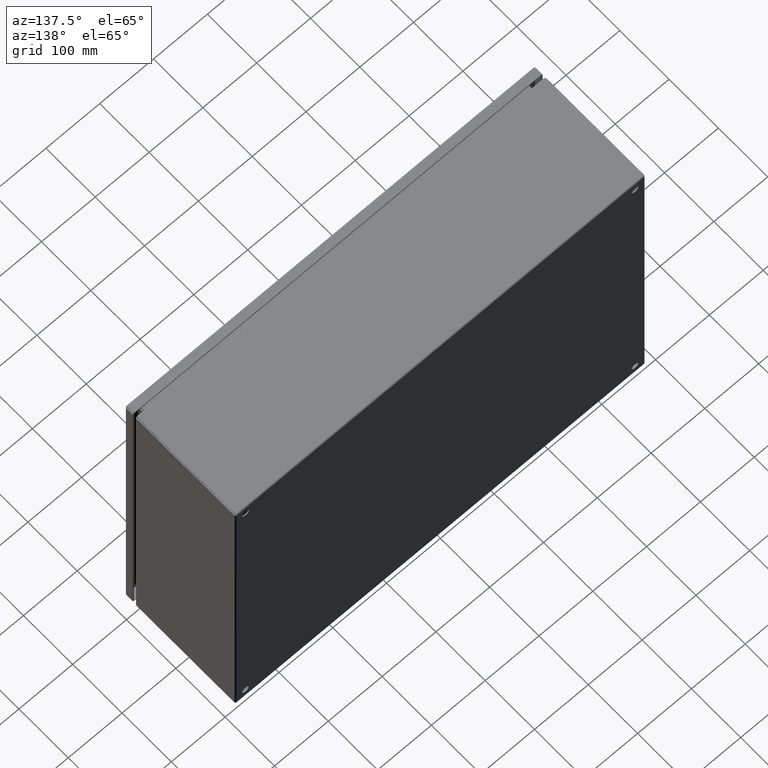
[diagram: clean part render]
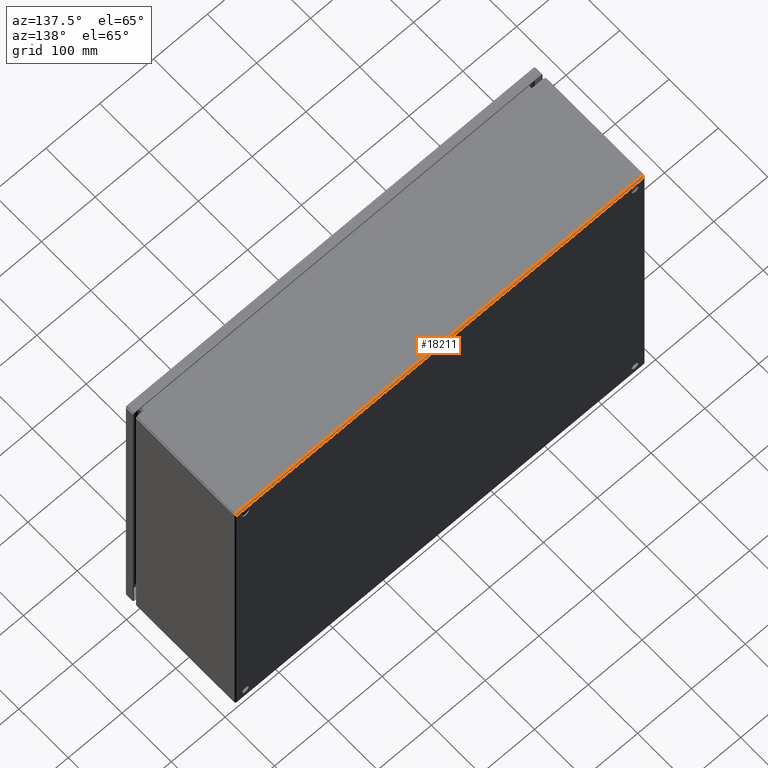
[diagram: same view with one face highlighted and labeled with its STEP entity id]
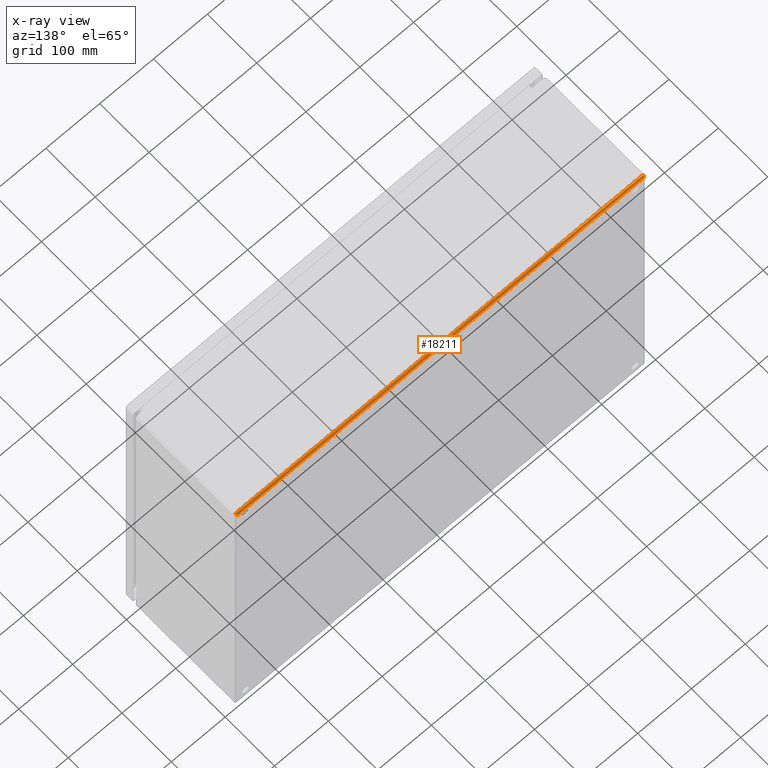
[diagram: x-ray of the same camera — body ghosted, the highlighted face saturated]
A machine part, auxiliary view. The second image highlights one B-rep face of the part: STEP entity #18211.
The next image is the same camera in x-ray: the body ghosted, the highlighted face saturated — about 0% of this face is hidden behind the body in this view.
In plain terms, the highlighted cylindrical surface (edge-blend (fillet) strip) has radius 2.7432 mm, axis along (1, 0, 0).
Its self-contained STEP definition (entity closure, byte-faithful):
#23 = CARTESIAN_POINT ( 'NONE',  ( 14.89782979566738064, -0.003456945479607288676, 11.91927091506302538 ) ) ;
#62 = CARTESIAN_POINT ( 'NONE',  ( -14.92269233917054549, -0.08363947937982081637, 11.99725928998238267 ) ) ;
#162 = CARTESIAN_POINT ( 'NONE',  ( 14.90067707588867485, -0.007685909067978820806, 11.93204146151964551 ) ) ;
#295 = CARTESIAN_POINT ( 'NONE',  ( 14.89656334171600882, -0.002147045573896687320, 11.91342783328443566 ) ) ;
#414 = CARTESIAN_POINT ( 'NONE',  ( 14.89257201947199150, 4.810469347744450016E-16, 11.89470394210501958 ) ) ;
#549 = CARTESIAN_POINT ( 'NONE',  ( 14.90447455623959172, -0.01569294883547174904, 11.94808603923344137 ) ) ;
#1349 = CARTESIAN_POINT ( 'NONE',  ( 14.89200000000000124, 2.304996744654213154E-16, 11.89200000000000124 ) ) ;
#1366 = CARTESIAN_POINT ( 'NONE',  ( 14.91807952410762184, -0.06303943880230539198, 11.99020785822549584 ) ) ;
#1402 = CARTESIAN_POINT ( 'NONE',  ( -14.89959483143383245, -0.005912312942371916909, 11.92724349799926387 ) ) ;
#1493 = CARTESIAN_POINT ( 'NONE',  ( 14.92725565107781982, -0.1050078344577811823, 12.00000000000000178 ) ) ;
#1534 = CARTESIAN_POINT ( 'NONE',  ( -14.90529024446751016, -0.01776249967260008431, 11.95133964555558848 ) ) ;
#1622 = CARTESIAN_POINT ( 'NONE',  ( 14.92662209288647546, -0.1020132078970535927, 11.99987544372036652 ) ) ;
#1654 = CARTESIAN_POINT ( 'NONE',  ( -14.91351624140465226, -0.04444823198400150305, 11.97933503464865090 ) ) ;
#1788 = CARTESIAN_POINT ( 'NONE',  ( -14.89548118140693944, -0.001240966561082443341, 11.90839342165858561 ) ) ;
#1880 = CARTESIAN_POINT ( 'NONE',  ( 14.92029381316758752, -0.07275650200075160778, 11.99408768705763073 ) ) ;
#1896 = CARTESIAN_POINT ( 'NONE',  ( -14.89200000000000124, 3.927031490892378253E-16, 11.89200000000000124 ) ) ;
#2132 = CARTESIAN_POINT ( 'NONE',  ( 14.90479090882169189, -0.01647849267531349346, 11.94935895041500551 ) ) ;
#2169 = CARTESIAN_POINT ( 'NONE',  ( -14.92016056801536195, -0.07215840573627885224, 11.99389021347176154 ) ) ;
#2401 = CARTESIAN_POINT ( 'NONE',  ( 14.90510719452243826, -0.01728995814048105845, 11.95061474478188046 ) ) ;
#2434 = CARTESIAN_POINT ( 'NONE',  ( -14.91826258985949138, -0.06382773464208395253, 11.99056493522097000 ) ) ;
#2521 = CARTESIAN_POINT ( 'NONE',  ( 14.90225874580130494, -0.01070522725932242757, 11.93887992317976021 ) ) ;
#3104 = ORIENTED_EDGE ( 'NONE', *, *, #11769, .T. ) ;
#3388 = CARTESIAN_POINT ( 'NONE',  ( -14.90244181057364870, -0.01108395763845180550, 11.93965795561052623 ) ) ;
#3522 = CARTESIAN_POINT ( 'NONE',  ( -14.90908607913991624, -0.02881840659119546538, 11.96544573006815071 ) ) ;
#3610 = CARTESIAN_POINT ( 'NONE',  ( 14.92092649653435821, -0.07559353455355168061, 11.99503424907713800 ) ) ;
#3650 = CARTESIAN_POINT ( 'NONE',  ( -14.90876976714918278, -0.02780162400720643384, 11.96434954020012320 ) ) ;
#3686 = CARTESIAN_POINT ( 'NONE',  ( -14.92788864460134057, -0.1079999999999994020, 12.00000000000000178 ) ) ;
#3740 = CARTESIAN_POINT ( 'NONE',  ( 14.90668875783656233, -0.02155341932546103040, 11.95675510929347141 ) ) ;
#3771 = CARTESIAN_POINT ( 'NONE',  ( -14.90117650094597934, -0.008585149152015034493, 11.93422467183208369 ) ) ;
#3867 = CARTESIAN_POINT ( 'NONE',  ( 14.91238423910695232, -0.04020078882944085052, 11.97608033333220057 ) ) ;
#3903 = CARTESIAN_POINT ( 'NONE',  ( -14.91256729714687701, -0.04087662766527837277, 11.97662085071858940 ) ) ;
#3994 = CARTESIAN_POINT ( 'NONE',  ( 14.91270053600304735, -0.04137756799666901519, 11.97700265615827497 ) ) ;
#4032 = CARTESIAN_POINT ( 'NONE',  ( -14.92459051660297398, -0.09246247282559905134, 11.99888695309999598 ) ) ;
#4155 = EDGE_CURVE ( 'NONE', #8989, #21226, #17462, .T. ) ;
#4159 = CARTESIAN_POINT ( 'NONE',  ( -14.92205884893394341, -0.08072908493702449229, 11.99654305452040859 ) ) ;
#4385 = CARTESIAN_POINT ( 'NONE',  ( 14.90004445536920841, -0.006615897669905271804, 11.92924915133080965 ) ) ;
#4520 = CARTESIAN_POINT ( 'NONE',  ( 14.90542348022324326, -0.01810142360579448245, 11.95187053914898101 ) ) ;
#5235 = ORIENTED_EDGE ( 'NONE', *, *, #4155, .T. ) ;
#5379 = CARTESIAN_POINT ( 'NONE',  ( -14.89927852086175797, -0.005424401907296485907, 11.92583019591835658 ) ) ;
#5467 = CARTESIAN_POINT ( 'NONE',  ( 14.91111887745219988, -0.03565045979989845543, 11.97219837599280368 ) ) ;
#5501 = CARTESIAN_POINT ( 'NONE',  ( -14.90655545526119852, -0.02117695444448200806, 11.95624946890689522 ) ) ;
#5599 = CARTESIAN_POINT ( 'NONE',  ( 14.91871214365544418, -0.06577532816792695802, 11.99141485084798298 ) ) ;
#5636 = CARTESIAN_POINT ( 'NONE',  ( -14.89643010657965405, -0.002013746385537709249, 11.91281224496548319 ) ) ;
#5701 = DIRECTION ( 'NONE',  ( 1.000000000000000000, 0.0000000000000000000, 6.123031769111889989E-17 ) ) ;
#5725 = CARTESIAN_POINT ( 'NONE',  ( 14.90795401898193084, -0.02527804674647543548, 11.96143398627417298 ) ) ;
#5767 = CARTESIAN_POINT ( 'NONE',  ( -14.91636335776549771, -0.05578077483381715246, 11.98658385485056321 ) ) ;
#5850 = CARTESIAN_POINT ( 'NONE',  ( 14.91459840013389559, -0.04866035444442483315, 11.98223750032740753 ) ) ;
#5881 = CARTESIAN_POINT ( 'NONE',  ( -14.90782077354321800, -0.02486662629111558234, 11.96095707112054463 ) ) ;
#5976 = CARTESIAN_POINT ( 'NONE',  ( 14.92314225238222036, -0.08572474523813002067, 11.99767787386815776 ) ) ;
#6079 = DIRECTION ( 'NONE',  ( 1.000000000000000000, 0.0000000000000000000, 6.123031769111889989E-17 ) ) ;
#6139 = CARTESIAN_POINT ( 'NONE',  ( -14.92490687443891240, -0.09394415682180703997, 11.99909187065436811 ) ) ;
#6401 = CARTESIAN_POINT ( 'NONE',  ( -14.92332530288530990, -0.08657216671561979160, 11.99785295442611321 ) ) ;
#6537 = CARTESIAN_POINT ( 'NONE',  ( -14.91984418923213340, -0.07075084866923317395, 11.99338410233011309 ) ) ;
#6633 = CARTESIAN_POINT ( 'NONE',  ( 14.90099343997223258, -0.008250030772354061126, 11.93342679230944370 ) ) ;
#7105 = CARTESIAN_POINT ( 'NONE',  ( -14.89326655171497116, -0.0001245562796371639340, 11.89798679210294985 ) ) ;
#7366 = CARTESIAN_POINT ( 'NONE',  ( -14.89453223303709350, -0.0006523368573350691452, 11.90394632608116332 ) ) ;
#7467 = CARTESIAN_POINT ( 'NONE',  ( 14.91966112355158813, -0.06993974310272148276, 11.99308240364299927 ) ) ;
#7501 = CARTESIAN_POINT ( 'NONE',  ( -14.89516482548258125, -0.001024184066539785215, 11.90691342664864294 ) ) ;
#7589 = CARTESIAN_POINT ( 'NONE',  ( 14.92124279814127519, -0.07702587905255672829, 11.99546305539434421 ) ) ;
#7629 = CARTESIAN_POINT ( 'NONE',  ( -14.91225093147217606, -0.03971121732627014983, 11.97568319809781201 ) ) ;
#7693 = B_SPLINE_CURVE_WITH_KNOTS ( 'NONE', 3,
 ( #17176, #25253, #7105, #23775, #20061, #7366, #13450, #7501, #1788, #13576, #19932, #5636, #11843, #13709, #17569, #21793, #9872, #5379, #1402, #15577, #19808, #25641, #9485, #3771, #15705, #17956, #19553, #3388, #23642, #17827, #13964, #9618, #19681, #1534, #24029, #26024, #11594, #5501, #17699, #7885, #21527, #5881, #11464, #21661, #3650, #3522, #17439, #23515, #22042, #25765, #25510, #15967, #7629, #3903, #11722, #11972, #1654, #9741, #25898, #9351, #7759, #15447, #15838, #23908, #5767, #13840, #21917, #8265, #2434, #12101, #22173, #8136, #10382, #6537, #2169, #12226, #20315, #16615, #12488, #4159, #62, #6401, #14612, #14481, #24677, #4032, #6139, #14348, #18210, #10001, #16088, #22692, #22303, #18087 ),
 .UNSPECIFIED., .F., .F.,
 ( 4, 3, 3, 3, 3, 3, 3, 3, 3, 3, 3, 3, 3, 3, 3, 3, 3, 3, 3, 3, 3, 3, 3, 3, 3, 3, 3, 3, 3, 3, 3, 4 ),
 ( 2.867470616023548916E-21, 0.0002330491441040485835, 0.0003494291325558780627, 0.0004658091212426450725, 0.0005821891100678087006, 0.0008152382578337678213, 0.0009316182464395940431, 0.001047998234924799304, 0.001164378223521366548, 0.001280758211998814016, 0.001397138200571258846, 0.001630187347899313913, 0.001746567336740650206, 0.001862947325461370741, 0.001979327313950771539, 0.002095707302237760899, 0.002328756445959284226, 0.002445136434247390748, 0.002561516422737129817, 0.002677896411458883814, 0.002794276400302534661, 0.002910656389099628566, 0.003143705534912970799, 0.003260085523446234947, 0.003376465512099394509, 0.003492845500637682850, 0.003609225489294679186, 0.003842274636925148163, 0.003958654625830153144, 0.004075034614598761588, 0.004191414603133582217, 0.004401983078982246028 ),
 .UNSPECIFIED. ) ;
#7724 = CARTESIAN_POINT ( 'NONE',  ( 14.90953603098194868, -0.03024967845576072289, 11.96701893443899500 ) ) ;
#7759 = CARTESIAN_POINT ( 'NONE',  ( -14.91478145007893907, -0.04938525521814339514, 11.98271004185953181 ) ) ;
#7847 = CARTESIAN_POINT ( 'NONE',  ( 14.91206787105817355, -0.03904292887947278384, 11.97513337370889808 ) ) ;
#7885 = CARTESIAN_POINT ( 'NONE',  ( -14.90718810859834242, -0.02299734384173786686, 11.95862243200334696 ) ) ;
#7971 = CARTESIAN_POINT ( 'NONE',  ( 14.91997750259573152, -0.07134319992082638340, 11.99359977602289362 ) ) ;
#8098 = CARTESIAN_POINT ( 'NONE',  ( 14.89624705626622614, -0.001850397565130662688, 11.91196239962459380 ) ) ;
#8136 = CARTESIAN_POINT ( 'NONE',  ( -14.91921156871267229, -0.06795853848039415390, 11.99231409093204093 ) ) ;
#8231 = CARTESIAN_POINT ( 'NONE',  ( 14.89846278754497000, -0.004292096868988307980, 11.92214416739883376 ) ) ;
#8265 = CARTESIAN_POINT ( 'NONE',  ( -14.91794621036546431, -0.06246702559837465085, 11.98994377837034619 ) ) ;
#8385 = VERTEX_POINT ( 'NONE', #3686 ) ;
#8989 = VERTEX_POINT ( 'NONE', #12756 ) ;
#9351 = CARTESIAN_POINT ( 'NONE',  ( -14.91446516437813585, -0.04812946085104152089, 11.98189857639421696 ) ) ;
#9448 = CARTESIAN_POINT ( 'NONE',  ( 14.91143525557963834, -0.03676799902641562923, 11.97319259522295987 ) ) ;
#9485 = CARTESIAN_POINT ( 'NONE',  ( -14.90086013781099972, -0.008009946023672082083, 11.93284390514074822 ) ) ;
#9584 = CARTESIAN_POINT ( 'NONE',  ( 14.92472381911885115, -0.09308657335136476252, 11.99897581593346452 ) ) ;
#9618 = CARTESIAN_POINT ( 'NONE',  ( -14.90402378894091839, -0.01457717014823369309, 11.94626903275161034 ) ) ;
#9706 = CARTESIAN_POINT ( 'NONE',  ( 14.92250928828656775, -0.08279690863441649396, 11.99706073137785545 ) ) ;
#9741 = CARTESIAN_POINT ( 'NONE',  ( -14.91383252813408156, -0.04566924857172134644, 11.98019794457007769 ) ) ;
#9838 = CARTESIAN_POINT ( 'NONE',  ( 14.92345853802177125, -0.08718775503452387554, 11.99798625361446547 ) ) ;
#9872 = CARTESIAN_POINT ( 'NONE',  ( -14.89896214806706531, -0.004965750922865143357, 11.92440646544646121 ) ) ;
#9964 = CARTESIAN_POINT ( 'NONE',  ( 14.92788864460141873, -0.1079999999999988192, 12.00000000000000178 ) ) ;
#10001 = CARTESIAN_POINT ( 'NONE',  ( -14.92585584061440152, -0.09840305299778234760, 11.99958314965328832 ) ) ;
#10233 = VERTEX_POINT ( 'NONE', #1896 ) ;
#10347 = CARTESIAN_POINT ( 'NONE',  ( 14.90162605474186996, -0.009435064779048705705, 11.93617226535794984 ) ) ;
#10382 = CARTESIAN_POINT ( 'NONE',  ( -14.91952787897248989, -0.06935469357519603861, 11.99284909663122356 ) ) ;
#10477 = CARTESIAN_POINT ( 'NONE',  ( 14.90352528683587607, -0.01341614514945215116, 11.94421922516620782 ) ) ;
#10597 = CARTESIAN_POINT ( 'NONE',  ( 14.89719630543077322, -0.002740710017629249123, 11.91636052062023232 ) ) ;
#11464 = CARTESIAN_POINT ( 'NONE',  ( -14.90813708128265525, -0.02583701553461043021, 11.96209453604768669 ) ) ;
#11560 = CARTESIAN_POINT ( 'NONE',  ( 14.91681415122144827, -0.05767206191265619036, 11.98756847876752296 ) ) ;
#11594 = CARTESIAN_POINT ( 'NONE',  ( -14.90623916744594801, -0.02030428939272080693, 11.95503540545665189 ) ) ;
#11689 = CARTESIAN_POINT ( 'NONE',  ( 14.91364947715545064, -0.04496459454336145661, 11.97969571060729166 ) ) ;
#11722 = CARTESIAN_POINT ( 'NONE',  ( -14.91288359195565505, -0.04206075918519489032, 11.97753371569601732 ) ) ;
#11769 = EDGE_CURVE ( 'NONE', #10233, #8385, #7693, .T. ) ;
#11809 = CARTESIAN_POINT ( 'NONE',  ( 14.90637240319673396, -0.02066496535136222099, 11.95555176801601682 ) ) ;
#11843 = CARTESIAN_POINT ( 'NONE',  ( -14.89674639221920494, -0.002322126131845639752, 11.91427525476187910 ) ) ;
#11887 = ORIENTED_EDGE ( 'NONE', *, *, #18999, .T. ) ;
#11938 = CARTESIAN_POINT ( 'NONE',  ( 14.90827032483434245, -0.02623929158979512385, 11.96257918987346436 ) ) ;
#11972 = CARTESIAN_POINT ( 'NONE',  ( -14.91319988676481856, -0.04324489070654686379, 11.97844658067455015 ) ) ;
#12062 = CARTESIAN_POINT ( 'NONE',  ( 14.89314446019544569, -0.0001016847547715023079, 11.89740969984122110 ) ) ;
#12101 = CARTESIAN_POINT ( 'NONE',  ( -14.91857889724421149, -0.06520047116592839198, 11.99115745222414020 ) ) ;
#12175 = DIRECTION ( 'NONE',  ( -1.000000000000000000, 0.0000000000000000000, -6.123031769111889989E-17 ) ) ;
#12226 = CARTESIAN_POINT ( 'NONE',  ( -14.92047687741707485, -0.07357557188841266915, 11.99436678538075363 ) ) ;
#12425 = DIRECTION ( 'NONE',  ( 0.0000000000000000000, 0.0000000000000000000, -1.000000000000000000 ) ) ;
#12488 = CARTESIAN_POINT ( 'NONE',  ( -14.92142585705635760, -0.07785583260121427263, 11.99570790313102897 ) ) ;
#12580 = CARTESIAN_POINT ( 'NONE',  ( 14.90289176177995145, -0.01200404456077230030, 11.94157549359892911 ) ) ;
#12756 = CARTESIAN_POINT ( 'NONE',  ( 14.92788864460141873, -0.1079999999999988192, 12.00000000000000178 ) ) ;
#13450 = CARTESIAN_POINT ( 'NONE',  ( -14.89484852925964375, -0.0008382604618239470999, 11.90542987636399630 ) ) ;
#13576 = CARTESIAN_POINT ( 'NONE',  ( -14.89579746900774460, -0.001488331624115586975, 11.90986797413770404 ) ) ;
#13672 = CARTESIAN_POINT ( 'NONE',  ( 14.91776314457494479, -0.06168375021779064216, 11.98957581916681470 ) ) ;
#13709 = CARTESIAN_POINT ( 'NONE',  ( -14.89737935631485577, -0.002939268622148437024, 11.91720309136559308 ) ) ;
#13806 = CARTESIAN_POINT ( 'NONE',  ( 14.90763771312920838, -0.02431680190220255819, 11.96028878267374829 ) ) ;
#13840 = CARTESIAN_POINT ( 'NONE',  ( -14.91699688282141523, -0.05842450640109922433, 11.98799595543924390 ) ) ;
#13927 = CARTESIAN_POINT ( 'NONE',  ( 14.91713052348047341, -0.05900033856064763882, 11.98825626555603208 ) ) ;
#13964 = CARTESIAN_POINT ( 'NONE',  ( -14.90339079428838431, -0.01314644156826682599, 11.94364109267664809 ) ) ;
#14057 = CARTESIAN_POINT ( 'NONE',  ( 14.91428211485625965, -0.04741110189115086554, 11.98141599925022938 ) ) ;
#14156 = CYLINDRICAL_SURFACE ( 'NONE', #16354, 0.1080000000000000543 ) ;
#14186 = CARTESIAN_POINT ( 'NONE',  ( 14.90415826404569088, -0.01493432833204632118, 11.94679763459304667 ) ) ;
#14313 = CARTESIAN_POINT ( 'NONE',  ( 14.90194243423589526, -0.01005622162966921147, 11.93753297440165895 ) ) ;
#14348 = CARTESIAN_POINT ( 'NONE',  ( -14.92522317276819699, -0.09542914869008774226, 11.99926590183904551 ) ) ;
#14481 = CARTESIAN_POINT ( 'NONE',  ( -14.92395793889786049, -0.08950949920033465790, 11.99841586758503809 ) ) ;
#14612 = CARTESIAN_POINT ( 'NONE',  ( -14.92364158833509080, -0.08803760037546337625, 11.99814960243487860 ) ) ;
#14704 = CARTESIAN_POINT ( 'NONE',  ( 14.89561441685079402, -0.001348589657409574559, 11.90901401398661186 ) ) ;
#15447 = CARTESIAN_POINT ( 'NONE',  ( -14.91509773577968545, -0.05064104958501918635, 11.98352150732469923 ) ) ;
#15546 = CARTESIAN_POINT ( 'NONE',  ( 14.92440746319448941, -0.09160657834142087175, 11.99875903343891892 ) ) ;
#15577 = CARTESIAN_POINT ( 'NONE',  ( -14.89991114200568845, -0.006400223977108548609, 11.92865680007918883 ) ) ;
#15672 = CARTESIAN_POINT ( 'NONE',  ( 14.91902850679041848, -0.06715609485926114786, 11.99199005397633222 ) ) ;
#15705 = CARTESIAN_POINT ( 'NONE',  ( -14.90149281071997400, -0.009188645463421254989, 11.93559261651526171 ) ) ;
#15803 = CARTESIAN_POINT ( 'NONE',  ( 14.90890301375381632, -0.02823249236999175391, 11.96480896048218945 ) ) ;
#15838 = CARTESIAN_POINT ( 'NONE',  ( -14.91541408836178562, -0.05191396076658151559, 11.98430705116454220 ) ) ;
#15934 = CARTESIAN_POINT ( 'NONE',  ( 14.91934481517108502, -0.06854791898135460804, 11.99253622880980963 ) ) ;
#15967 = CARTESIAN_POINT ( 'NONE',  ( -14.91193462561945360, -0.03856601372584440163, 11.97472195325354072 ) ) ;
#16050 = CARTESIAN_POINT ( 'NONE',  ( 14.91523136350383716, -0.05116041107665172949, 11.98388152275585306 ) ) ;
#16088 = CARTESIAN_POINT ( 'NONE',  ( -14.92617214939566495, -0.09989398821801680206, 11.99969536932009184 ) ) ;
#16354 = AXIS2_PLACEMENT_3D ( 'NONE', #21980, #6079, #12425 ) ;
#16615 = CARTESIAN_POINT ( 'NONE',  ( -14.92110955753464552, -0.07642009800215773807, 11.99529058658342073 ) ) ;
#17176 = CARTESIAN_POINT ( 'NONE',  ( -14.89200000000000124, 3.927031490892378253E-16, 11.89200000000000124 ) ) ;
#17439 = CARTESIAN_POINT ( 'NONE',  ( -14.90971909596655465, -0.03085323455710967458, 11.96763947122239280 ) ) ;
#17462 = B_SPLINE_CURVE_WITH_KNOTS ( 'NONE', 3,
 ( #9964, #1493, #1622, #21622, #23734, #22136, #17533, #9584, #15546, #25606, #25990, #9838, #5976, #9706, #19778, #7589, #3610, #17665, #1880, #7971, #7467, #15934, #15672, #5599, #26117, #1366, #13672, #23998, #13927, #11560, #19644, #21755, #16050, #5850, #14057, #22010, #11689, #23608, #18054, #3994, #3867, #7847, #19516, #9448, #5467, #17793, #25862, #7724, #15803, #23868, #11938, #5725, #13806, #21885, #17920, #3740, #11809, #19899, #24640, #4520, #2401, #2132, #549, #14186, #10477, #12580, #2521, #14313, #10347, #18564, #6633, #162, #20668, #4385, #20407, #18436, #24508, #22268, #8231, #23, #10597, #295, #8098, #22388, #14704, #18693, #24387, #24772, #20156, #22652, #22782, #12062, #414, #20544 ),
 .UNSPECIFIED., .F., .F.,
 ( 4, 3, 3, 3, 3, 3, 3, 3, 3, 3, 3, 3, 3, 3, 3, 3, 3, 3, 3, 3, 3, 3, 3, 3, 3, 3, 3, 3, 3, 3, 3, 4 ),
 ( 2.284576318970110939E-16, 0.0002330491441040343534, 0.0003494291325558076438, 0.0004658091212426660518, 0.0005821891100677429980, 0.0008152382578336232971, 0.0009316182464394060425, 0.001047998234924706930, 0.001164378223521358958, 0.001280758211998759590, 0.001397138200571176663, 0.001630187347899203542, 0.001746567336740512729, 0.001862947325461203557, 0.001979327313950539520, 0.002095707302237546227, 0.002328756445959084299, 0.002445136434247130106, 0.002561516422736947237, 0.002677896411458636182, 0.002794276400302223712, 0.002910656389099288560, 0.003143705534912551430, 0.003260085523445668560, 0.003376465512098773044, 0.003492845500637081768, 0.003609225489294028231, 0.003842274636924368405, 0.003958654625829317875, 0.004075034614597925452, 0.004191414603132833684, 0.004401983078982893947 ),
 .UNSPECIFIED. ) ;
#17533 = CARTESIAN_POINT ( 'NONE',  ( 14.92504011534179043, -0.09457012363601084715, 11.99916173953818088 ) ) ;
#17569 = CARTESIAN_POINT ( 'NONE',  ( -14.89801285040857692, -0.003678799405804256042, 11.92010765301768060 ) ) ;
#17665 = CARTESIAN_POINT ( 'NONE',  ( 14.92061012373966200, -0.07416980408165649297, 11.99457559809270712 ) ) ;
#17699 = CARTESIAN_POINT ( 'NONE',  ( -14.90687181170187792, -0.02207502101458519439, 11.95744565283474081 ) ) ;
#17793 = CARTESIAN_POINT ( 'NONE',  ( 14.91080256546146643, -0.03455426993187095397, 11.97118159340881505 ) ) ;
#17827 = CARTESIAN_POINT ( 'NONE',  ( -14.90307449337996815, -0.01243152123248145689, 11.94232793808735593 ) ) ;
#17920 = CARTESIAN_POINT ( 'NONE',  ( 14.90700505264572406, -0.02246628430399534582, 11.95793924081482373 ) ) ;
#17956 = CARTESIAN_POINT ( 'NONE',  ( -14.90180912049379991, -0.009792141774503103011, 11.93696056119770432 ) ) ;
#18054 = CARTESIAN_POINT ( 'NONE',  ( 14.91301683289951541, -0.04255434716527411315, 11.97792497898542585 ) ) ;
#18087 = CARTESIAN_POINT ( 'NONE',  ( -14.92788864460134057, -0.1079999999999994020, 12.00000000000000178 ) ) ;
#18210 = CARTESIAN_POINT ( 'NONE',  ( -14.92553947109710677, -0.09691414055660384219, 11.99943993302351686 ) ) ;
#18211 = ADVANCED_FACE ( 'NONE', ( #22497 ), #14156, .T. ) ;
#18436 = CARTESIAN_POINT ( 'NONE',  ( 14.89941176718426341, -0.005633214619256565400, 11.92642442811163228 ) ) ;
#18564 = CARTESIAN_POINT ( 'NONE',  ( 14.90130974735714631, -0.008842547775878794453, 11.93479952883410711 ) ) ;
#18677 = LINE ( 'NONE', #20261, #22584 ) ;
#18693 = CARTESIAN_POINT ( 'NONE',  ( 14.89529812799833763, -0.001113046900006857366, 11.90753752717446190 ) ) ;
#18718 = EDGE_LOOP ( 'NONE', ( #5235, #23682, #3104, #11887 ) ) ;
#18999 = EDGE_CURVE ( 'NONE', #8385, #8989, #23487, .T. ) ;
#19516 = CARTESIAN_POINT ( 'NONE',  ( 14.91175156331873453, -0.03790546395232979870, 11.97416298446540317 ) ) ;
#19553 = CARTESIAN_POINT ( 'NONE',  ( -14.90212550002647518, -0.01042418083319012791, 11.93831624978221662 ) ) ;
#19644 = CARTESIAN_POINT ( 'NONE',  ( 14.91649785031303033, -0.05635890732336350933, 11.98685355843173639 ) ) ;
#19681 = CARTESIAN_POINT ( 'NONE',  ( -14.90465728109757038, -0.01611847724415265901, 11.94883958892336118 ) ) ;
#19778 = CARTESIAN_POINT ( 'NONE',  ( 14.92187579419284660, -0.07989234698233167731, 11.99632120059419904 ) ) ;
#19808 = CARTESIAN_POINT ( 'NONE',  ( -14.90022752104983006, -0.006917596357005142277, 11.93006025689729022 ) ) ;
#19899 = CARTESIAN_POINT ( 'NONE',  ( 14.90605611646730289, -0.01980205542993570406, 11.95433075142829793 ) ) ;
#19932 = CARTESIAN_POINT ( 'NONE',  ( -14.89611375660879133, -0.001735696687337278136, 11.91134252661794513 ) ) ;
#20061 = CARTESIAN_POINT ( 'NONE',  ( -14.89421586582118628, -0.0004971954218489435529, 11.90245860841538139 ) ) ;
#20156 = CARTESIAN_POINT ( 'NONE',  ( 14.89434917350420662, -0.0005600669764875606388, 11.90308585944345587 ) ) ;
#20261 = CARTESIAN_POINT ( 'NONE',  ( -14.92799999999999905, 0.0000000000000000000, 11.89200000000000124 ) ) ;
#20315 = CARTESIAN_POINT ( 'NONE',  ( -14.92079318681895472, -0.07499273804129370780, 11.99484335728999795 ) ) ;
#20407 = CARTESIAN_POINT ( 'NONE',  ( 14.89972807658597986, -0.006109786528249277517, 11.92784159426376434 ) ) ;
#20544 = CARTESIAN_POINT ( 'NONE',  ( 14.89200000000000124, 2.304996744654213154E-16, 11.89200000000000124 ) ) ;
#20668 = CARTESIAN_POINT ( 'NONE',  ( 14.90036076562885548, -0.007150903368795698094, 11.93064530642484478 ) ) ;
#21226 = VERTEX_POINT ( 'NONE', #1349 ) ;
#21475 = EDGE_CURVE ( 'NONE', #21226, #10233, #18677, .T. ) ;
#21527 = CARTESIAN_POINT ( 'NONE',  ( -14.90750440549443923, -0.02391966666781162806, 11.95979921117057465 ) ) ;
#21622 = CARTESIAN_POINT ( 'NONE',  ( 14.92598908586914419, -0.09903138018857698954, 11.99962696622444902 ) ) ;
#21661 = CARTESIAN_POINT ( 'NONE',  ( -14.90845338902174966, -0.02680740477705630120, 11.96323200097360129 ) ) ;
#21755 = CARTESIAN_POINT ( 'NONE',  ( 14.91586485566049447, -0.05373096724840115135, 11.98542282985177110 ) ) ;
#21793 = CARTESIAN_POINT ( 'NONE',  ( -14.89864584646014833, -0.004536944605658236457, 11.92297412094745646 ) ) ;
#21885 = CARTESIAN_POINT ( 'NONE',  ( 14.90732134745450566, -0.02337914928142416013, 11.95912337233474076 ) ) ;
#21917 = CARTESIAN_POINT ( 'NONE',  ( -14.91762989880005819, -0.06112007682026945887, 11.98929477274069377 ) ) ;
#21980 = CARTESIAN_POINT ( 'NONE',  ( -14.89200000000000124, -0.1079999999999996241, 11.89200000000000124 ) ) ;
#22010 = CARTESIAN_POINT ( 'NONE',  ( 14.91396576497088411, -0.04617865799429529683, 11.98056837565954602 ) ) ;
#22042 = CARTESIAN_POINT ( 'NONE',  ( -14.91098563084756634, -0.03519103951782878020, 11.97176750763001962 ) ) ;
#22136 = CARTESIAN_POINT ( 'NONE',  ( 14.92535641156434423, -0.09605367391884404860, 11.99934766314266987 ) ) ;
#22173 = CARTESIAN_POINT ( 'NONE',  ( -14.91889520462912344, -0.06657320769059382748, 11.99174996922766567 ) ) ;
#22268 = CARTESIAN_POINT ( 'NONE',  ( 14.89877908706668563, -0.004709413416595503721, 11.92357990199788809 ) ) ;
#22303 = CARTESIAN_POINT ( 'NONE',  ( -14.92731662512931301, -0.1052960578949996701, 12.00000000000000178 ) ) ;
#22318 = VECTOR ( 'NONE', #5701, 39.37007874015748143 ) ;
#22388 = CARTESIAN_POINT ( 'NONE',  ( 14.89593070570345468, -0.001584132414965637838, 11.91049050079972460 ) ) ;
#22497 = FACE_OUTER_BOUND ( 'NONE', #18718, .T. ) ;
#22584 = VECTOR ( 'NONE', #12175, 39.37007874015748143 ) ;
#22652 = CARTESIAN_POINT ( 'NONE',  ( 14.89403280398690299, -0.0004168503467194907596, 11.90159694700227533 ) ) ;
#22692 = CARTESIAN_POINT ( 'NONE',  ( -14.92674418440585704, -0.1025903001588195917, 11.99989831524523254 ) ) ;
#22782 = CARTESIAN_POINT ( 'NONE',  ( 14.89371649520564134, -0.0003046306799150314101, 11.90010601178203942 ) ) ;
#23487 = LINE ( 'NONE', #25224, #22318 ) ;
#23515 = CARTESIAN_POINT ( 'NONE',  ( -14.91035261361943220, -0.03298106556102316927, 11.96975032154425200 ) ) ;
#23608 = CARTESIAN_POINT ( 'NONE',  ( 14.91333318934019658, -0.04375053109311629468, 11.97882304555552935 ) ) ;
#23642 = CARTESIAN_POINT ( 'NONE',  ( -14.90275812112094656, -0.01174373444397268200, 11.94099966143936165 ) ) ;
#23682 = ORIENTED_EDGE ( 'NONE', *, *, #21475, .T. ) ;
#23734 = CARTESIAN_POINT ( 'NONE',  ( 14.92567277878025322, -0.09754139158462460379, 11.99950280457815488 ) ) ;
#23775 = CARTESIAN_POINT ( 'NONE',  ( -14.89389955873229709, -0.0003730337755534348862, 11.90096861981142773 ) ) ;
#23868 = CARTESIAN_POINT ( 'NONE',  ( 14.90858670156248955, -0.02722452525196654427, 11.96370465924996118 ) ) ;
#23908 = CARTESIAN_POINT ( 'NONE',  ( -14.91573038055568468, -0.05320236540697763361, 11.98506567166796799 ) ) ;
#23998 = CARTESIAN_POINT ( 'NONE',  ( 14.91744683402777127, -0.06034204438948281846, 11.98891604236155217 ) ) ;
#24029 = CARTESIAN_POINT ( 'NONE',  ( -14.90560652974514255, -0.01858400074977704930, 11.95258889810886238 ) ) ;
#24387 = CARTESIAN_POINT ( 'NONE',  ( 14.89498177016239921, -0.0009081293456381473676, 11.90605584317825283 ) ) ;
#24508 = CARTESIAN_POINT ( 'NONE',  ( 14.89909545778237998, -0.005156642710012859614, 11.92500726195875238 ) ) ;
#24640 = CARTESIAN_POINT ( 'NONE',  ( 14.90573982973765688, -0.01893914550792234752, 11.95310973483974770 ) ) ;
#24677 = CARTESIAN_POINT ( 'NONE',  ( -14.92427422775052115, -0.09098598601344783099, 11.99865141034259430 ) ) ;
#24772 = CARTESIAN_POINT ( 'NONE',  ( 14.89466547183311462, -0.0007340981609595165257, 11.90457085130997150 ) ) ;
#25224 = CARTESIAN_POINT ( 'NONE',  ( -14.89200000000000124, -0.1079999999999980420, 12.00000000000000178 ) ) ;
#25253 = CARTESIAN_POINT ( 'NONE',  ( -14.89263299352363035, 4.609993489308426309E-16, 11.89499216554222194 ) ) ;
#25510 = CARTESIAN_POINT ( 'NONE',  ( -14.91161831976704200, -0.03742081012655290584, 11.97376070841021978 ) ) ;
#25606 = CARTESIAN_POINT ( 'NONE',  ( 14.92409117559368070, -0.09013202586230192881, 11.99851166837588679 ) ) ;
#25641 = CARTESIAN_POINT ( 'NONE',  ( -14.90054382943033318, -0.007463771190196022247, 11.93145208101865684 ) ) ;
#25765 = CARTESIAN_POINT ( 'NONE',  ( -14.91130194303889311, -0.03629534075005950988, 11.97277547474804749 ) ) ;
#25862 = CARTESIAN_POINT ( 'NONE',  ( 14.91016954863482624, -0.03236052877762819746, 11.96914676544290224 ) ) ;
#25898 = CARTESIAN_POINT ( 'NONE',  ( -14.91414881486372757, -0.04689026516027153257, 11.98106085449209246 ) ) ;
#25990 = CARTESIAN_POINT ( 'NONE',  ( 14.92377488799263219, -0.08865747338206134143, 11.99826430331266636 ) ) ;
#26024 = CARTESIAN_POINT ( 'NONE',  ( -14.90592287963051632, -0.01943162434046460246, 11.95382134200571578 ) ) ;
#26117 = CARTESIAN_POINT ( 'NONE',  ( 14.91839583388144774, -0.06440738348474778219, 11.99081135453657687 ) ) ;